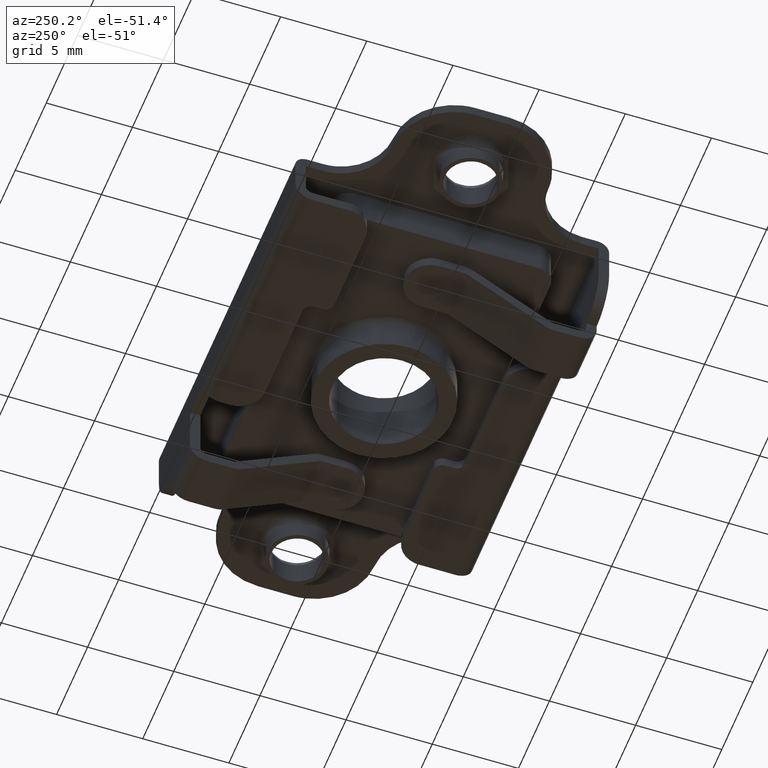
[diagram: clean part render]
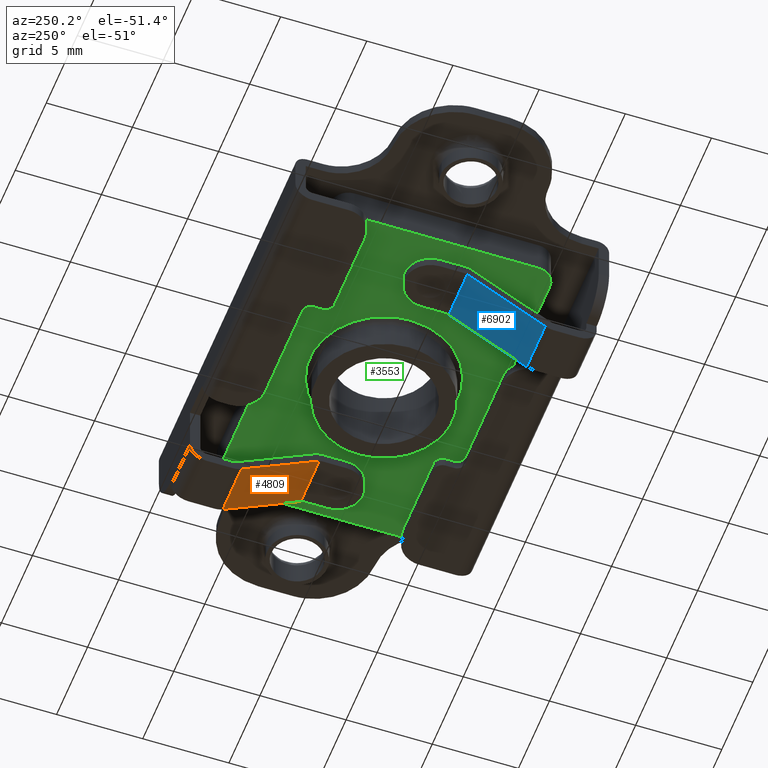
[diagram: same view with three faces highlighted in distinct colors, each labeled with its STEP entity id]
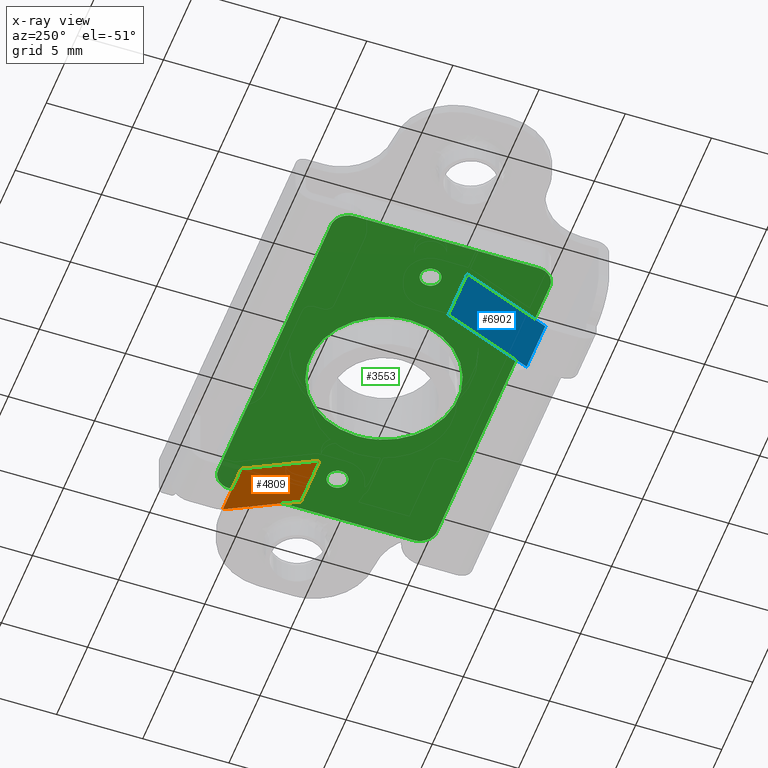
[diagram: x-ray of the same camera — body ghosted, the three highlighted faces saturated]
A machine part, auxiliary view with three faces highlighted in distinct colors.
The next image is the same camera in x-ray (body ghosted, the three faces saturated) — at least one of them is partly hidden behind the body in this view.
Their STEP definitions:

[orange] entity #4809 — the highlighted face is a freeform B-spline surface patch.
#4735=CARTESIAN_POINT('',(8.999999999999789,6.117691453655200,-6.066025403784221));
#4736=VERTEX_POINT('',#4735);
#4752=CARTESIAN_POINT('',(5.999999999999780,6.117691453655200,-6.066025403784221));
#4753=VERTEX_POINT('',#4752);
#4754=CARTESIAN_POINT('',(5.999999999999780,6.117691453655200,-6.066025403784221));
#4755=CARTESIAN_POINT('',(8.999999999999789,6.117691453655200,-6.066025403784221));
#4756=QUASI_UNIFORM_CURVE('',1,(#4754,#4755),.UNSPECIFIED.,.F.,.U.);
#4757=EDGE_CURVE('',#4753,#4736,#4756,.T.);
#4782=CARTESIAN_POINT('',(5.850150005814361,1.366803018822775,-3.323098687043970));
#4783=CARTESIAN_POINT('',(5.850150005814361,6.343708879226472,-6.196516625279342));
#4784=CARTESIAN_POINT('',(9.149850074651477,1.366803018822775,-3.323098687043970));
#4785=CARTESIAN_POINT('',(9.149850074651477,6.343708879226472,-6.196516625279342));
#4786=B_SPLINE_SURFACE_WITH_KNOTS('',1,1,((#4782,#4784),(#4783,#4785)),.UNSPECIFIED.,.F.,.F.,.U.,(2,2),(2,2),(0.0,5.746835876470938),(0.0,3.299700068837116),.UNSPECIFIED.);
#4787=CARTESIAN_POINT('',(8.999999999999789,1.592820323027470,-3.453589838468240));
#4788=VERTEX_POINT('',#4787);
#4789=CARTESIAN_POINT('',(8.999999999999789,1.592820323027470,-3.453589838468240));
#4790=CARTESIAN_POINT('',(8.999999999999789,6.117691453655200,-6.066025403784221));
#4791=QUASI_UNIFORM_CURVE('',1,(#4789,#4790),.UNSPECIFIED.,.F.,.U.);
#4792=EDGE_CURVE('',#4788,#4736,#4791,.T.);
#4793=ORIENTED_EDGE('',*,*,#4792,.F.);
#4794=CARTESIAN_POINT('',(5.999999999999780,1.592820323027470,-3.453589838468240));
#4795=VERTEX_POINT('',#4794);
#4796=CARTESIAN_POINT('',(5.999999999999780,1.592820323027470,-3.453589838468240));
#4797=CARTESIAN_POINT('',(8.999999999999789,1.592820323027470,-3.453589838468240));
#4798=QUASI_UNIFORM_CURVE('',1,(#4796,#4797),.UNSPECIFIED.,.F.,.U.);
#4799=EDGE_CURVE('',#4795,#4788,#4798,.T.);
#4800=ORIENTED_EDGE('',*,*,#4799,.F.);
#4801=CARTESIAN_POINT('',(5.999999999999780,1.592820323027470,-3.453589838468240));
#4802=CARTESIAN_POINT('',(5.999999999999780,6.117691453655200,-6.066025403784221));
#4803=QUASI_UNIFORM_CURVE('',1,(#4801,#4802),.UNSPECIFIED.,.F.,.U.);
#4804=EDGE_CURVE('',#4795,#4753,#4803,.T.);
#4805=ORIENTED_EDGE('',*,*,#4804,.T.);
#4806=ORIENTED_EDGE('',*,*,#4757,.T.);
#4807=EDGE_LOOP('',(#4793,#4800,#4805,#4806));
#4808=FACE_OUTER_BOUND('',#4807,.T.);
#4809=ADVANCED_FACE('',(#4808),#4786,.T.);

[blue] entity #6902 — the highlighted face is a freeform B-spline surface patch.
#6828=CARTESIAN_POINT('',(-9.0,-6.117691453655200,-6.066025403784221));
#6829=VERTEX_POINT('',#6828);
#6845=CARTESIAN_POINT('',(-6.0,-6.117691453655200,-6.066025403784221));
#6846=VERTEX_POINT('',#6845);
#6847=CARTESIAN_POINT('',(-6.0,-6.117691453655200,-6.066025403784221));
#6848=CARTESIAN_POINT('',(-9.0,-6.117691453655200,-6.066025403784221));
#6849=QUASI_UNIFORM_CURVE('',1,(#6847,#6848),.UNSPECIFIED.,.F.,.U.);
#6850=EDGE_CURVE('',#6846,#6829,#6849,.T.);
#6875=CARTESIAN_POINT('',(-9.149849994185420,-6.343708757859972,-6.196516555208358));
#6876=CARTESIAN_POINT('',(-9.149849994185420,-1.366802897456276,-3.323098616972987));
#6877=CARTESIAN_POINT('',(-5.850149925348311,-6.343708757859972,-6.196516555208358));
#6878=CARTESIAN_POINT('',(-5.850149925348311,-1.366802897456276,-3.323098616972987));
#6879=B_SPLINE_SURFACE_WITH_KNOTS('',1,1,((#6875,#6877),(#6876,#6878)),.UNSPECIFIED.,.F.,.F.,.U.,(2,2),(2,2),(0.0,5.746835876470935),(0.0,3.299700068837109),.UNSPECIFIED.);
#6880=CARTESIAN_POINT('',(-9.0,-1.592820323027470,-3.453589838468240));
#6881=VERTEX_POINT('',#6880);
#6882=CARTESIAN_POINT('',(-9.0,-1.592820323027470,-3.453589838468240));
#6883=CARTESIAN_POINT('',(-9.0,-6.117691453655200,-6.066025403784221));
#6884=QUASI_UNIFORM_CURVE('',1,(#6882,#6883),.UNSPECIFIED.,.F.,.U.);
#6885=EDGE_CURVE('',#6881,#6829,#6884,.T.);
#6886=ORIENTED_EDGE('',*,*,#6885,.F.);
#6887=CARTESIAN_POINT('',(-6.0,-1.592820323027470,-3.453589838468240));
#6888=VERTEX_POINT('',#6887);
#6889=CARTESIAN_POINT('',(-6.0,-1.592820323027470,-3.453589838468240));
#6890=CARTESIAN_POINT('',(-9.0,-1.592820323027470,-3.453589838468240));
#6891=QUASI_UNIFORM_CURVE('',1,(#6889,#6890),.UNSPECIFIED.,.F.,.U.);
#6892=EDGE_CURVE('',#6888,#6881,#6891,.T.);
#6893=ORIENTED_EDGE('',*,*,#6892,.F.);
#6894=CARTESIAN_POINT('',(-6.0,-1.592820323027470,-3.453589838468240));
#6895=CARTESIAN_POINT('',(-6.0,-6.117691453655200,-6.066025403784221));
#6896=QUASI_UNIFORM_CURVE('',1,(#6894,#6895),.UNSPECIFIED.,.F.,.U.);
#6897=EDGE_CURVE('',#6888,#6846,#6896,.T.);
#6898=ORIENTED_EDGE('',*,*,#6897,.T.);
#6899=ORIENTED_EDGE('',*,*,#6850,.T.);
#6900=EDGE_LOOP('',(#6886,#6893,#6898,#6899));
#6901=FACE_OUTER_BOUND('',#6900,.T.);
#6902=ADVANCED_FACE('',(#6901),#6879,.T.);

[green] entity #3553 — the highlighted face is a freeform B-spline surface patch.
#1715=CARTESIAN_POINT('',(4.299660489997356,0.054033971518357,-2.599999999999583));
#1716=VERTEX_POINT('',#1715);
#1730=CARTESIAN_POINT('',(4.300000000000000,0.0,-2.599999999999595));
#1731=VERTEX_POINT('',#1730);
#1732=CARTESIAN_POINT('',(4.300000000000000,0.0,-2.599999999999595));
#1733=CARTESIAN_POINT('',(4.299999999960606,0.027018052375098,-2.599999999999588));
#1734=CARTESIAN_POINT('',(4.299660489997356,0.054033971518357,-2.599999999999583));
#1742=(BOUNDED_CURVE()B_SPLINE_CURVE(2,(#1732,#1733,#1734),.UNSPECIFIED.,.F.,.U.)B_SPLINE_CURVE_WITH_KNOTS((3,3),(0.500000000000000,0.502215704079128),.UNSPECIFIED.)CURVE()GEOMETRIC_REPRESENTATION_ITEM()RATIONAL_B_SPLINE_CURVE((1.0,0.997404141201304,0.994854295642042))REPRESENTATION_ITEM(''));
#1743=EDGE_CURVE('',#1731,#1716,#1742,.T.);
#1745=CARTESIAN_POINT('',(-4.299660489997355,-0.054033971518357,-2.599999999999571));
#1746=VERTEX_POINT('',#1745);
#1747=CARTESIAN_POINT('',(-4.299660489997355,-0.054033971518357,-2.599999999999571));
#1748=CARTESIAN_POINT('',(-4.298229545052986,-0.167892850197102,-2.599999999999572));
#1749=CARTESIAN_POINT('',(-4.291827884160568,-0.290451379364067,-2.599999999999575));
#1750=CARTESIAN_POINT('',(-4.279258091600259,-0.421237007453849,-2.599999999999572));
#1751=CARTESIAN_POINT('',(-4.276708116118759,-0.447392094909489,-2.599999999999573));
#1752=CARTESIAN_POINT('',(-4.247639194917880,-0.717389632133250,-2.599999999999564));
#1753=CARTESIAN_POINT('',(-4.153728916002203,-1.182893461292685,-2.599999999999617));
#1754=CARTESIAN_POINT('',(-3.986256533064556,-1.626639250545460,-2.599999999999537));
#1755=CARTESIAN_POINT('',(-3.889814588502590,-1.832962860518495,-2.599999999999584));
#1756=CARTESIAN_POINT('',(-3.878398294002114,-1.856632157400417,-2.599999999999581));
#1757=CARTESIAN_POINT('',(-3.863326574951121,-1.888263535658261,-2.599999999999580));
#1758=CARTESIAN_POINT('',(-3.735327648842421,-2.147461564014599,-2.599999999999581));
#1759=CARTESIAN_POINT('',(-3.493673972479526,-2.535834837584341,-2.599999999999592));
#1760=CARTESIAN_POINT('',(-3.025007372617399,-3.081945220795619,-2.599999999999581));
#1761=CARTESIAN_POINT('',(-2.427227889881939,-3.588203638619600,-2.599999999999597));
#1762=CARTESIAN_POINT('',(-1.704522935304429,-3.975340502675024,-2.599999999999585));
#1763=CARTESIAN_POINT('',(-0.933831884973838,-4.218270830698833,-2.599999999999616));
#1764=CARTESIAN_POINT('',(-0.210405902108356,-4.318249291066461,-2.599999999999524));
#1765=CARTESIAN_POINT('',(0.316604989623619,-4.295621450359703,-2.599999999999547));
#1766=CARTESIAN_POINT('',(0.577103462787290,-4.261041182037424,-2.599999999999600));
#1767=CARTESIAN_POINT('',(0.603147489079145,-4.257537762739593,-2.599999999999594));
#1768=CARTESIAN_POINT('',(0.819878285062876,-4.226146617969568,-2.599999999999597));
#1769=CARTESIAN_POINT('',(1.240057202510756,-4.133437351506885,-2.599999999999593));
#1770=CARTESIAN_POINT('',(1.642371206644447,-3.980288520323925,-2.599999999999596));
#1771=CARTESIAN_POINT('',(1.856033528045499,-3.878858497280066,-2.599999999999595));
#1772=CARTESIAN_POINT('',(1.879635245091589,-3.867302847540851,-2.599999999999591));
#1773=CARTESIAN_POINT('',(1.911174628324041,-3.852040212789512,-2.599999999999663));
#1774=CARTESIAN_POINT('',(2.200940892114392,-3.706818831661991,-2.599999999999337));
#1775=CARTESIAN_POINT('',(2.703604695374231,-3.381259605239510,-2.599999999999811));
#1776=CARTESIAN_POINT('',(3.268795438411697,-2.826232844849535,-2.599999999999562));
#1777=CARTESIAN_POINT('',(3.725127270627394,-2.191529925299742,-2.599999999999552));
#1778=CARTESIAN_POINT('',(3.946922595172818,-1.731568825138066,-2.599999999999616));
#1779=CARTESIAN_POINT('',(4.050673276362465,-1.443062264539830,-2.599999999999593));
#1780=CARTESIAN_POINT('',(4.059321405366866,-1.418247796740920,-2.599999999999611));
#1781=CARTESIAN_POINT('',(4.148216144897366,-1.161658397241826,-2.599999999999454));
#1782=CARTESIAN_POINT('',(4.263784233389109,-0.691998446417560,-2.599999999999965));
#1783=CARTESIAN_POINT('',(4.300012129425090,-0.218988073576789,-2.599999999999262));
#1784=CARTESIAN_POINT('',(4.300000000000000,0.0,-2.599999999999595));
#1785=B_SPLINE_CURVE_WITH_KNOTS('',3,(#1747,#1748,#1749,#1750,#1751,#1752,#1753,#1754,#1755,#1756,#1757,#1758,#1759,#1760,#1761,#1762,#1763,#1764,#1765,#1766,#1767,#1768,#1769,#1770,#1771,#1772,#1773,#1774,#1775,#1776,#1777,#1778,#1779,#1780,#1781,#1782,#1783,#1784),.UNSPECIFIED.,.F.,.U.,(4,1,1,1,1,1,1,1,1,1,1,1,1,1,1,1,1,1,1,1,1,1,1,1,1,1,1,1,1,1,1,1,1,1,1,4),(0.000045767418172,0.341650430700183,0.367930387551008,0.394210344401818,0.420488096651610,1.182593812992943,1.813285552189383,1.839562794701916,1.865841923079783,1.892121051457647,1.944679257604733,2.733051459941404,3.258631948702043,4.099559901381538,5.071885826951679,5.702592328172674,6.517226982933972,7.253012410491046,7.279293233755171,7.305574057019296,7.331848636372430,7.936265567068822,8.593249462210986,8.619526939897211,8.645806196725658,8.672085453554113,8.724643752912549,9.618131825002209,10.459060880977500,11.089757245147700,11.956970614506650,11.983247118065920,12.009526923441710,12.035806728817500,12.797894776793351,13.454856581606450),.UNSPECIFIED.);
#1786=EDGE_CURVE('',#1746,#1731,#1785,.T.);
#1832=CARTESIAN_POINT('',(-4.300000000000000,0.0,-2.599999999999570));
#1833=VERTEX_POINT('',#1832);
#1834=CARTESIAN_POINT('',(-4.300000000000000,0.0,-2.599999999999570));
#1835=CARTESIAN_POINT('',(-4.299999999960605,-0.027018052375098,-2.599999999999571));
#1836=CARTESIAN_POINT('',(-4.299660489997355,-0.054033971518357,-2.599999999999571));
#1844=(BOUNDED_CURVE()B_SPLINE_CURVE(2,(#1834,#1835,#1836),.UNSPECIFIED.,.F.,.U.)B_SPLINE_CURVE_WITH_KNOTS((3,3),(0.0,0.002215704079128),.UNSPECIFIED.)CURVE()GEOMETRIC_REPRESENTATION_ITEM()RATIONAL_B_SPLINE_CURVE((1.0,0.997404141201304,0.994854295642042))REPRESENTATION_ITEM(''));
#1845=EDGE_CURVE('',#1833,#1746,#1844,.T.);
#1847=CARTESIAN_POINT('',(4.299660489997356,0.054033971518357,-2.599999999999583));
#1848=CARTESIAN_POINT('',(4.298229144024925,0.167892921410926,-2.599999999999586));
#1849=CARTESIAN_POINT('',(4.291828343937138,0.290451274158327,-2.599999999999576));
#1850=CARTESIAN_POINT('',(4.279258036017560,0.421237020604172,-2.599999999999583));
#1851=CARTESIAN_POINT('',(4.276708121114989,0.447392101125793,-2.599999999999582));
#1852=CARTESIAN_POINT('',(4.247639175770885,0.717389605629146,-2.599999999999600));
#1853=CARTESIAN_POINT('',(4.153728941603792,1.182893487397728,-2.599999999999539));
#1854=CARTESIAN_POINT('',(3.986256524055670,1.626639241992308,-2.599999999999622));
#1855=CARTESIAN_POINT('',(3.889814589623011,1.832962861523342,-2.599999999999580));
#1856=CARTESIAN_POINT('',(3.878398591454273,1.856632358646887,-2.599999999999581));
#1857=CARTESIAN_POINT('',(3.863319879397107,1.888259051515489,-2.599999999999583));
#1858=CARTESIAN_POINT('',(3.704343203070497,2.210325574327345,-2.599999999999581));
#1859=CARTESIAN_POINT('',(3.346095333734033,2.755789006321220,-2.599999999999587));
#1860=CARTESIAN_POINT('',(2.682147607412576,3.399479580236553,-2.599999999999558));
#1861=CARTESIAN_POINT('',(1.968328108477284,3.852086658075773,-2.599999999999566));
#1862=CARTESIAN_POINT('',(1.207505196474077,4.152157555363976,-2.599999999999545));
#1863=CARTESIAN_POINT('',(0.369747191327317,4.315288014621943,-2.599999999999594));
#1864=CARTESIAN_POINT('',(-0.229636562352437,4.306152865362787,-2.599999999999575));
#1865=CARTESIAN_POINT('',(-0.559744516614372,4.263404595176100,-2.599999999999575));
#1866=CARTESIAN_POINT('',(-0.577094849494011,4.260978756883259,-2.599999999999574));
#1867=CARTESIAN_POINT('',(-0.603147587876822,4.257538229005047,-2.599999999999577));
#1868=CARTESIAN_POINT('',(-0.802538619811427,4.228652863332762,-2.599999999999572));
#1869=CARTESIAN_POINT('',(-1.223106083624756,4.138557981639885,-2.599999999999579));
#1870=CARTESIAN_POINT('',(-1.626547170701452,3.987809043108073,-2.599999999999569));
#1871=CARTESIAN_POINT('',(-1.856033202030749,3.878857565013650,-2.599999999999576));
#1872=CARTESIAN_POINT('',(-1.879635184718694,3.867302756757208,-2.599999999999575));
#1873=CARTESIAN_POINT('',(-1.911171546202276,3.852035845702668,-2.599999999999575));
#1874=CARTESIAN_POINT('',(-2.247960477627447,3.683311474018649,-2.599999999999575));
#1875=CARTESIAN_POINT('',(-2.701626661432532,3.377428928653819,-2.599999999999571));
#1876=CARTESIAN_POINT('',(-3.190019630438266,2.897774501038789,-2.599999999999572));
#1877=CARTESIAN_POINT('',(-3.531350125504782,2.474282135644299,-2.599999999999574));
#1878=CARTESIAN_POINT('',(-3.820586703290388,2.002546728408746,-2.599999999999569));
#1879=CARTESIAN_POINT('',(-3.982466515155319,1.632641360225646,-2.599999999999573));
#1880=CARTESIAN_POINT('',(-4.050677029807380,1.443063946505362,-2.599999999999570));
#1881=CARTESIAN_POINT('',(-4.059263877405698,1.418227547241509,-2.599999999999572));
#1882=CARTESIAN_POINT('',(-4.068012140251728,1.393447372639417,-2.599999999999572));
#1883=CARTESIAN_POINT('',(-4.135514799545271,1.194343962843576,-2.599999999999599));
#1884=CARTESIAN_POINT('',(-4.255867834965438,0.735787394461233,-2.599999999999481));
#1885=CARTESIAN_POINT('',(-4.300031124411472,0.271544799046733,-2.599999999999690));
#1886=CARTESIAN_POINT('',(-4.300000000000000,0.0,-2.599999999999570));
#1887=B_SPLINE_CURVE_WITH_KNOTS('',3,(#1847,#1848,#1849,#1850,#1851,#1852,#1853,#1854,#1855,#1856,#1857,#1858,#1859,#1860,#1861,#1862,#1863,#1864,#1865,#1866,#1867,#1868,#1869,#1870,#1871,#1872,#1873,#1874,#1875,#1876,#1877,#1878,#1879,#1880,#1881,#1882,#1883,#1884,#1885,#1886),.UNSPECIFIED.,.F.,.U.,(4,1,1,1,1,1,1,1,1,1,1,1,1,1,1,1,2,1,1,1,1,1,1,1,1,1,1,1,1,1,1,1,1,1,1,1,4),(0.000045767415868,0.341650430697948,0.367930387548768,0.394210344399587,0.420488096649383,1.182593812990863,1.813285552187441,1.839562794699969,1.865841923077838,1.892121051455712,1.944679257602802,2.943283806696647,3.836769884144294,4.703985558100239,5.466075247014436,6.280725649955807,7.253012410490099,7.279293233754224,7.305574057018368,7.331848636371502,7.883707474985582,8.593249462210322,8.619526939896561,8.645806196725017,8.672085453553477,8.724643752911941,9.775805885262342,10.301386548653699,10.774409446457449,11.405103945554419,11.956970614506600,11.983247118065870,12.009526923441660,12.035806728817461,12.062083708481779,12.640229937724170,13.454856581606450),.UNSPECIFIED.);
#1888=EDGE_CURVE('',#1716,#1833,#1887,.T.);
#2793=CARTESIAN_POINT('',(6.905581516611694,-1.136868E-013,-2.599999999999595));
#2794=VERTEX_POINT('',#2793);
#2795=CARTESIAN_POINT('',(8.094418483388925,-1.136868E-013,-2.599999999999595));
#2796=VERTEX_POINT('',#2795);
#2797=CARTESIAN_POINT('',(6.905581516611694,-1.136868E-013,-2.599999999999595));
#2798=CARTESIAN_POINT('',(6.905550565901463,-0.063224063776716,-2.599999999999594));
#2799=CARTESIAN_POINT('',(6.922030802722380,-0.165324934670382,-2.599999999999600));
#2800=CARTESIAN_POINT('',(6.979470875510993,-0.294875699412833,-2.599999999999592));
#2801=CARTESIAN_POINT('',(7.049814489442385,-0.394752940432718,-2.599999999999595));
#2802=CARTESIAN_POINT('',(7.157339091802215,-0.494691064758651,-2.599999999999599));
#2803=CARTESIAN_POINT('',(7.288498795877271,-0.562720746656018,-2.599999999999592));
#2804=CARTESIAN_POINT('',(7.460151693901416,-0.601290200722934,-2.599999999999579));
#2805=CARTESIAN_POINT('',(7.623035011828271,-0.591292502293168,-2.599999999999617));
#2806=CARTESIAN_POINT('',(7.773884148217594,-0.533039256502175,-2.599999999999565));
#2807=CARTESIAN_POINT('',(7.883590007523493,-0.459740327165860,-2.599999999999625));
#2808=CARTESIAN_POINT('',(7.975853767019661,-0.365189074612333,-2.599999999999578));
#2809=CARTESIAN_POINT('',(8.066569630364457,-0.213896668921341,-2.599999999999612));
#2810=CARTESIAN_POINT('',(8.094521097799300,-0.082688518218161,-2.599999999999585));
#2811=CARTESIAN_POINT('',(8.094418483388925,-1.136868E-013,-2.599999999999595));
#2812=B_SPLINE_CURVE_WITH_KNOTS('',3,(#2797,#2798,#2799,#2800,#2801,#2802,#2803,#2804,#2805,#2806,#2807,#2808,#2809,#2810,#2811),.UNSPECIFIED.,.F.,.U.,(4,1,1,1,1,1,1,1,1,1,1,1,4),(0.000000127692569,0.189664655323639,0.306379600779328,0.423097969540723,0.554406424714374,0.744076245687231,0.860806141579489,1.079613733580613,1.225523959973553,1.342242238217318,1.473550143987516,1.619455182795079,1.867467601844320),.UNSPECIFIED.);
#2813=EDGE_CURVE('',#2794,#2796,#2812,.T.);
#2815=CARTESIAN_POINT('',(8.094418483388925,-1.136868E-013,-2.599999999999595));
#2816=CARTESIAN_POINT('',(8.094487526918698,0.072952687167058,-2.599999999999596));
#2817=CARTESIAN_POINT('',(8.073556695301132,0.184748168844004,-2.599999999999592));
#2818=CARTESIAN_POINT('',(8.003239623645859,0.324419163199494,-2.599999999999594));
#2819=CARTESIAN_POINT('',(7.911536246088327,0.439055127136347,-2.599999999999614));
#2820=CARTESIAN_POINT('',(7.791783565557889,0.525606716079457,-2.599999999999533));
#2821=CARTESIAN_POINT('',(7.659541868486350,0.576582271033504,-2.599999999999696));
#2822=CARTESIAN_POINT('',(7.544002652251287,0.596629610361208,-2.599999999999510));
#2823=CARTESIAN_POINT('',(7.426770702314377,0.593750825878131,-2.599999999999545));
#2824=CARTESIAN_POINT('',(7.307583561092529,0.566993294586514,-2.599999999999667));
#2825=CARTESIAN_POINT('',(7.196368421987465,0.516054735747237,-2.599999999999560));
#2826=CARTESIAN_POINT('',(7.094313989863331,0.440366193805229,-2.599999999999602));
#2827=CARTESIAN_POINT('',(7.006796971016041,0.341397417506247,-2.599999999999578));
#2828=CARTESIAN_POINT('',(6.928245743720000,0.194477412162961,-2.599999999999655));
#2829=CARTESIAN_POINT('',(6.905525370144945,0.072949557068374,-2.599999999999541));
#2830=CARTESIAN_POINT('',(6.905581516611694,-1.136868E-013,-2.599999999999595));
#2831=B_SPLINE_CURVE_WITH_KNOTS('',3,(#2815,#2816,#2817,#2818,#2819,#2820,#2821,#2822,#2823,#2824,#2825,#2826,#2827,#2828,#2829,#2830),.UNSPECIFIED.,.F.,.U.,(4,1,1,1,1,1,1,1,1,1,1,1,1,4),(0.000000127692893,0.218828349082589,0.335553212064352,0.466868247272936,0.656544382284641,0.773264978125265,0.889987203970758,1.006666045593316,1.123383100974357,1.254695568300292,1.371420497971870,1.502735390266865,1.648638526459684,1.867467601844372),.UNSPECIFIED.);
#2832=EDGE_CURVE('',#2796,#2794,#2831,.T.);
#3408=CARTESIAN_POINT('',(-11.108989960848479,6.984364975384936,-2.599999999999595));
#3409=CARTESIAN_POINT('',(11.108990502654700,6.984364975384936,-2.599999999999595));
#3410=CARTESIAN_POINT('',(-11.108989960848479,-6.984365316025481,-2.599999999999595));
#3411=CARTESIAN_POINT('',(11.108990502654700,-6.984365316025481,-2.599999999999595));
#3412=B_SPLINE_SURFACE_WITH_KNOTS('',1,1,((#3408,#3410),(#3409,#3411)),.UNSPECIFIED.,.F.,.F.,.U.,(2,2),(2,2),(0.0,22.217980463503189),(0.0,13.968730291410420),.UNSPECIFIED.);
#3413=CARTESIAN_POINT('',(9.100000000000000,6.350000000000000,-2.599999999999605));
#3414=VERTEX_POINT('',#3413);
#3415=CARTESIAN_POINT('',(10.100000000000000,5.350000000000000,-2.599999999999605));
#3416=VERTEX_POINT('',#3415);
#3417=CARTESIAN_POINT('',(9.100000000000000,6.350000000000000,-2.599999999999605));
#3418=CARTESIAN_POINT('',(10.100000000000001,6.350000000000000,-2.599999999999604));
#3419=CARTESIAN_POINT('',(10.100000000000000,5.350000000000000,-2.599999999999605));
#3427=(BOUNDED_CURVE()B_SPLINE_CURVE(2,(#3417,#3418,#3419),.UNSPECIFIED.,.F.,.U.)CURVE()GEOMETRIC_REPRESENTATION_ITEM()QUASI_UNIFORM_CURVE()RATIONAL_B_SPLINE_CURVE((1.0,0.707106781186548,1.0))REPRESENTATION_ITEM(''));
#3428=EDGE_CURVE('',#3414,#3416,#3427,.T.);
#3429=ORIENTED_EDGE('',*,*,#3428,.T.);
#3430=CARTESIAN_POINT('',(10.100000000000000,-5.350000000000000,-2.599999999999605));
#3431=VERTEX_POINT('',#3430);
#3432=CARTESIAN_POINT('',(10.100000000000000,5.350000000000000,-2.599999999999605));
#3433=CARTESIAN_POINT('',(10.100000000000000,-5.350000000000000,-2.599999999999605));
#3434=QUASI_UNIFORM_CURVE('',1,(#3432,#3433),.UNSPECIFIED.,.F.,.U.);
#3435=EDGE_CURVE('',#3416,#3431,#3434,.T.);
#3436=ORIENTED_EDGE('',*,*,#3435,.T.);
#3437=CARTESIAN_POINT('',(9.100000000000000,-6.350000000000000,-2.599999999999605));
#3438=VERTEX_POINT('',#3437);
#3439=CARTESIAN_POINT('',(10.100000000000000,-5.350000000000000,-2.599999999999605));
#3440=CARTESIAN_POINT('',(10.100000000000001,-6.350000000000000,-2.599999999999604));
#3441=CARTESIAN_POINT('',(9.100000000000000,-6.350000000000000,-2.599999999999605));
#3449=(BOUNDED_CURVE()B_SPLINE_CURVE(2,(#3439,#3440,#3441),.UNSPECIFIED.,.F.,.U.)CURVE()GEOMETRIC_REPRESENTATION_ITEM()QUASI_UNIFORM_CURVE()RATIONAL_B_SPLINE_CURVE((1.0,0.707106781186548,1.0))REPRESENTATION_ITEM(''));
#3450=EDGE_CURVE('',#3431,#3438,#3449,.T.);
#3451=ORIENTED_EDGE('',*,*,#3450,.T.);
#3452=CARTESIAN_POINT('',(-9.100000000000000,-6.350000000000000,-2.599999999999605));
#3453=VERTEX_POINT('',#3452);
#3454=CARTESIAN_POINT('',(9.100000000000000,-6.350000000000000,-2.599999999999605));
#3455=CARTESIAN_POINT('',(-9.100000000000000,-6.350000000000000,-2.599999999999605));
#3456=QUASI_UNIFORM_CURVE('',1,(#3454,#3455),.UNSPECIFIED.,.F.,.U.);
#3457=EDGE_CURVE('',#3438,#3453,#3456,.T.);
#3458=ORIENTED_EDGE('',*,*,#3457,.T.);
#3459=CARTESIAN_POINT('',(-10.100000000000000,-5.350000000000000,-2.599999999999605));
#3460=VERTEX_POINT('',#3459);
#3461=CARTESIAN_POINT('',(-9.100000000000000,-6.350000000000000,-2.599999999999605));
#3462=CARTESIAN_POINT('',(-10.100000000000001,-6.350000000000000,-2.599999999999604));
#3463=CARTESIAN_POINT('',(-10.100000000000000,-5.350000000000000,-2.599999999999605));
#3471=(BOUNDED_CURVE()B_SPLINE_CURVE(2,(#3461,#3462,#3463),.UNSPECIFIED.,.F.,.U.)CURVE()GEOMETRIC_REPRESENTATION_ITEM()QUASI_UNIFORM_CURVE()RATIONAL_B_SPLINE_CURVE((1.0,0.707106781186548,1.0))REPRESENTATION_ITEM(''));
#3472=EDGE_CURVE('',#3453,#3460,#3471,.T.);
#3473=ORIENTED_EDGE('',*,*,#3472,.T.);
#3474=CARTESIAN_POINT('',(-10.100000000000000,5.350000000000000,-2.599999999999605));
#3475=VERTEX_POINT('',#3474);
#3476=CARTESIAN_POINT('',(-10.100000000000000,-5.350000000000000,-2.599999999999605));
#3477=CARTESIAN_POINT('',(-10.100000000000000,5.350000000000000,-2.599999999999605));
#3478=QUASI_UNIFORM_CURVE('',1,(#3476,#3477),.UNSPECIFIED.,.F.,.U.);
#3479=EDGE_CURVE('',#3460,#3475,#3478,.T.);
#3480=ORIENTED_EDGE('',*,*,#3479,.T.);
#3481=CARTESIAN_POINT('',(-9.100000000000000,6.350000000000000,-2.599999999999605));
#3482=VERTEX_POINT('',#3481);
#3483=CARTESIAN_POINT('',(-10.100000000000000,5.350000000000000,-2.599999999999605));
#3484=CARTESIAN_POINT('',(-10.100000000000001,6.350000000000000,-2.599999999999604));
#3485=CARTESIAN_POINT('',(-9.100000000000000,6.350000000000000,-2.599999999999605));
#3493=(BOUNDED_CURVE()B_SPLINE_CURVE(2,(#3483,#3484,#3485),.UNSPECIFIED.,.F.,.U.)CURVE()GEOMETRIC_REPRESENTATION_ITEM()QUASI_UNIFORM_CURVE()RATIONAL_B_SPLINE_CURVE((1.0,0.707106781186548,1.0))REPRESENTATION_ITEM(''));
#3494=EDGE_CURVE('',#3475,#3482,#3493,.T.);
#3495=ORIENTED_EDGE('',*,*,#3494,.T.);
#3496=CARTESIAN_POINT('',(-9.100000000000000,6.350000000000000,-2.599999999999605));
#3497=CARTESIAN_POINT('',(9.100000000000000,6.350000000000000,-2.599999999999605));
#3498=QUASI_UNIFORM_CURVE('',1,(#3496,#3497),.UNSPECIFIED.,.F.,.U.);
#3499=EDGE_CURVE('',#3482,#3414,#3498,.T.);
#3500=ORIENTED_EDGE('',*,*,#3499,.T.);
#3501=EDGE_LOOP('',(#3429,#3436,#3451,#3458,#3473,#3480,#3495,#3500));
#3502=FACE_OUTER_BOUND('',#3501,.T.);
#3503=ORIENTED_EDGE('',*,*,#2813,.T.);
#3504=ORIENTED_EDGE('',*,*,#2832,.T.);
#3505=EDGE_LOOP('',(#3503,#3504));
#3506=FACE_BOUND('',#3505,.T.);
#3507=CARTESIAN_POINT('',(-8.094418483388308,-1.136868E-013,-2.599999999999595));
#3508=VERTEX_POINT('',#3507);
#3509=CARTESIAN_POINT('',(-6.905581516611074,-1.136868E-013,-2.599999999999595));
#3510=VERTEX_POINT('',#3509);
#3511=CARTESIAN_POINT('',(-8.094418483388308,-1.136868E-013,-2.599999999999595));
#3512=CARTESIAN_POINT('',(-8.094434537040293,-0.053488372531502,-2.599999999999597));
#3513=CARTESIAN_POINT('',(-8.081858665984823,-0.145872651200408,-2.599999999999590));
#3514=CARTESIAN_POINT('',(-8.025606407299341,-0.291778962414938,-2.599999999999600));
#3515=CARTESIAN_POINT('',(-7.927515089106415,-0.427517397311926,-2.599999999999592));
#3516=CARTESIAN_POINT('',(-7.767839107737292,-0.542940624485258,-2.599999999999592));
#3517=CARTESIAN_POINT('',(-7.578924364006086,-0.600246705375928,-2.599999999999614));
#3518=CARTESIAN_POINT('',(-7.396825031489367,-0.593510360343042,-2.599999999999576));
#3519=CARTESIAN_POINT('',(-7.229327282827248,-0.538172810768476,-2.599999999999608));
#3520=CARTESIAN_POINT('',(-7.103432563108910,-0.451806449408650,-2.599999999999602));
#3521=CARTESIAN_POINT('',(-6.994891844668021,-0.325982216998874,-2.599999999999554));
#3522=CARTESIAN_POINT('',(-6.923610542540942,-0.179923456346648,-2.599999999999709));
#3523=CARTESIAN_POINT('',(-6.905563406809402,-0.058353002237482,-2.599999999999491));
#3524=CARTESIAN_POINT('',(-6.905581516611074,-1.136868E-013,-2.599999999999595));
#3525=B_SPLINE_CURVE_WITH_KNOTS('',3,(#3511,#3512,#3513,#3514,#3515,#3516,#3517,#3518,#3519,#3520,#3521,#3522,#3523,#3524),.UNSPECIFIED.,.F.,.U.,(4,1,1,1,1,1,1,1,1,1,1,4),(0.000000127693609,0.160465754756078,0.277190420935901,0.466868247273177,0.656544382284740,0.860806141579831,1.050432937430176,1.196333386805581,1.386011211019458,1.502735390266867,1.692405124008299,1.867467601844376),.UNSPECIFIED.);
#3526=EDGE_CURVE('',#3508,#3510,#3525,.T.);
#3527=ORIENTED_EDGE('',*,*,#3526,.T.);
#3528=CARTESIAN_POINT('',(-6.905581516611074,-1.136868E-013,-2.599999999999595));
#3529=CARTESIAN_POINT('',(-6.905519334056640,0.072949852702205,-2.599999999999594));
#3530=CARTESIAN_POINT('',(-6.931866403880079,0.213933669181879,-2.599999999999598));
#3531=CARTESIAN_POINT('',(-7.038407590193487,0.391743092699791,-2.599999999999594));
#3532=CARTESIAN_POINT('',(-7.181646621159051,0.512232322739632,-2.599999999999600));
#3533=CARTESIAN_POINT('',(-7.353055960923610,0.585706320056029,-2.599999999999585));
#3534=CARTESIAN_POINT('',(-7.524932277480137,0.602648925822265,-2.599999999999618));
#3535=CARTESIAN_POINT('',(-7.712380362845958,0.565363697608307,-2.599999999999582));
#3536=CARTESIAN_POINT('',(-7.859696208760499,0.484311599442604,-2.599999999999601));
#3537=CARTESIAN_POINT('',(-7.965596635400247,0.375682549536547,-2.599999999999592));
#3538=CARTESIAN_POINT('',(-8.034814148404104,0.269308310976163,-2.599999999999594));
#3539=CARTESIAN_POINT('',(-8.082421978561882,0.145879051476074,-2.599999999999596));
#3540=CARTESIAN_POINT('',(-8.094428945514956,0.048625327687581,-2.599999999999596));
#3541=CARTESIAN_POINT('',(-8.094418483388308,-1.136868E-013,-2.599999999999595));
#3542=B_SPLINE_CURVE_WITH_KNOTS('',3,(#3528,#3529,#3530,#3531,#3532,#3533,#3534,#3535,#3536,#3537,#3538,#3539,#3540,#3541),.UNSPECIFIED.,.F.,.U.,(4,1,1,1,1,1,1,1,1,1,1,4),(0.000000127692728,0.218828349082361,0.423097969540791,0.612765960209897,0.773264978125029,0.977480033156243,1.123383100974120,1.342242238217368,1.473550143987552,1.575687424931188,1.721590389703587,1.867467601844326),.UNSPECIFIED.);
#3543=EDGE_CURVE('',#3510,#3508,#3542,.T.);
#3544=ORIENTED_EDGE('',*,*,#3543,.T.);
#3545=EDGE_LOOP('',(#3527,#3544));
#3546=FACE_BOUND('',#3545,.T.);
#3547=ORIENTED_EDGE('',*,*,#1845,.T.);
#3548=ORIENTED_EDGE('',*,*,#1786,.T.);
#3549=ORIENTED_EDGE('',*,*,#1743,.T.);
#3550=ORIENTED_EDGE('',*,*,#1888,.T.);
#3551=EDGE_LOOP('',(#3547,#3548,#3549,#3550));
#3552=FACE_BOUND('',#3551,.T.);
#3553=ADVANCED_FACE('',(#3502,#3506,#3546,#3552),#3412,.T.);